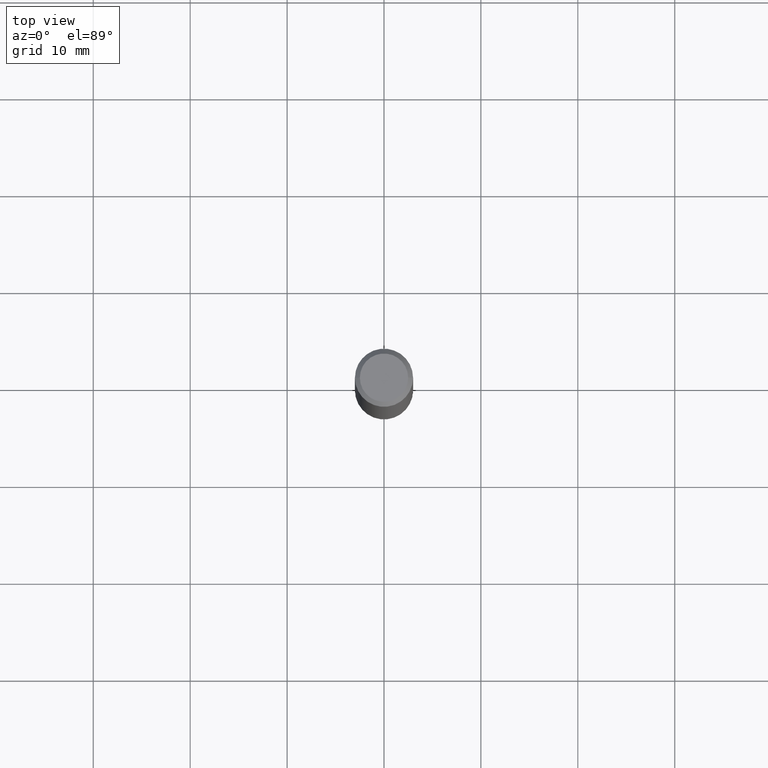
[diagram: clean part render]
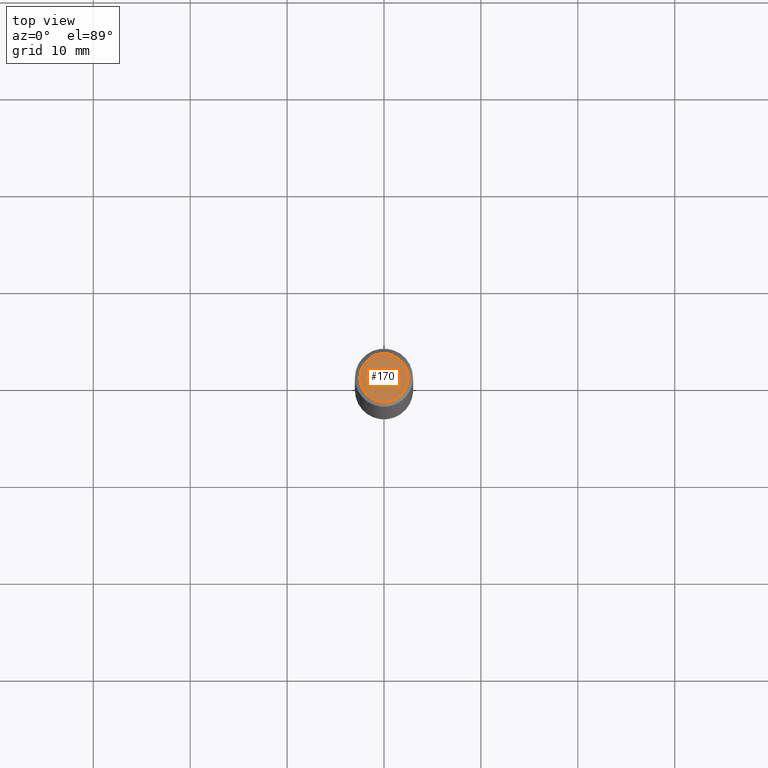
[diagram: same view with one face highlighted and labeled with its STEP entity id]
A machine part, top view. The second image highlights one B-rep face of the part: STEP entity #170.
In plain terms, the highlighted planar face has unit normal (0, -0, -1).
Its self-contained STEP definition (entity closure, byte-faithful):
#16 = DIRECTION ( 'NONE',  ( 1.000000000000000000, -6.982962677686267499E-15, 4.876195163481342132E-29 ) ) ;
#18 = DIRECTION ( 'NONE',  ( 2.438088387897960049E-29, -3.491481338843145188E-15, -1.000000000000000000 ) ) ;
#27 = DIRECTION ( 'NONE',  ( -1.000000000000000000, 6.982962677686265922E-15, -4.876176775795935793E-29 ) ) ;
#68 = CIRCLE ( 'NONE', #276, 0.09809999999999979847 ) ;
#76 = DIRECTION ( 'NONE',  ( -2.445468806185136597E-29, 3.491481338843145583E-15, 1.000000000000000000 ) ) ;
#82 = FACE_OUTER_BOUND ( 'NONE', #245, .T. ) ;
#101 = EDGE_CURVE ( 'NONE', #264, #268, #68, .T. ) ;
#111 = CARTESIAN_POINT ( 'NONE',  ( -0.09809999999999979847, 7.199434520694525264E-16, -8.537024980205735990E-18 ) ) ;
#115 = CARTESIAN_POINT ( 'NONE',  ( 0.09809999999999979847, -7.765346469475326737E-16, -8.537024980195711910E-18 ) ) ;
#170 = ADVANCED_FACE ( 'NONE', ( #82 ), #281, .F. ) ;
#177 = EDGE_CURVE ( 'NONE', #268, #264, #237, .T. ) ;
#179 = ORIENTED_EDGE ( 'NONE', *, *, #177, .T. ) ;
#219 = AXIS2_PLACEMENT_3D ( 'NONE', #271, #18, #27 ) ;
#222 = CARTESIAN_POINT ( 'NONE',  ( 2.087702828670439639E-46, -2.980686340760894400E-32, -8.537024980200822558E-18 ) ) ;
#237 = CIRCLE ( 'NONE', #314, 0.09809999999999979847 ) ;
#245 = EDGE_LOOP ( 'NONE', ( #348, #179 ) ) ;
#247 = DIRECTION ( 'NONE',  ( -2.445468806185136597E-29, 3.491481338843145583E-15, 1.000000000000000000 ) ) ;
#264 = VERTEX_POINT ( 'NONE', #111 ) ;
#268 = VERTEX_POINT ( 'NONE', #115 ) ;
#271 = CARTESIAN_POINT ( 'NONE',  ( 6.850286386810212718E-16, 0.09809999999999979847, -3.467828318306122952E-16 ) ) ;
#276 = AXIS2_PLACEMENT_3D ( 'NONE', #222, #247, #16 ) ;
#281 = PLANE ( 'NONE',  #219 ) ;
#314 = AXIS2_PLACEMENT_3D ( 'NONE', #319, #76, #330 ) ;
#319 = CARTESIAN_POINT ( 'NONE',  ( 2.087702828670439639E-46, -2.980686340760894400E-32, -8.537024980200822558E-18 ) ) ;
#330 = DIRECTION ( 'NONE',  ( 1.000000000000000000, -6.982962677686267499E-15, 4.876195163481342132E-29 ) ) ;
#348 = ORIENTED_EDGE ( 'NONE', *, *, #101, .T. ) ;